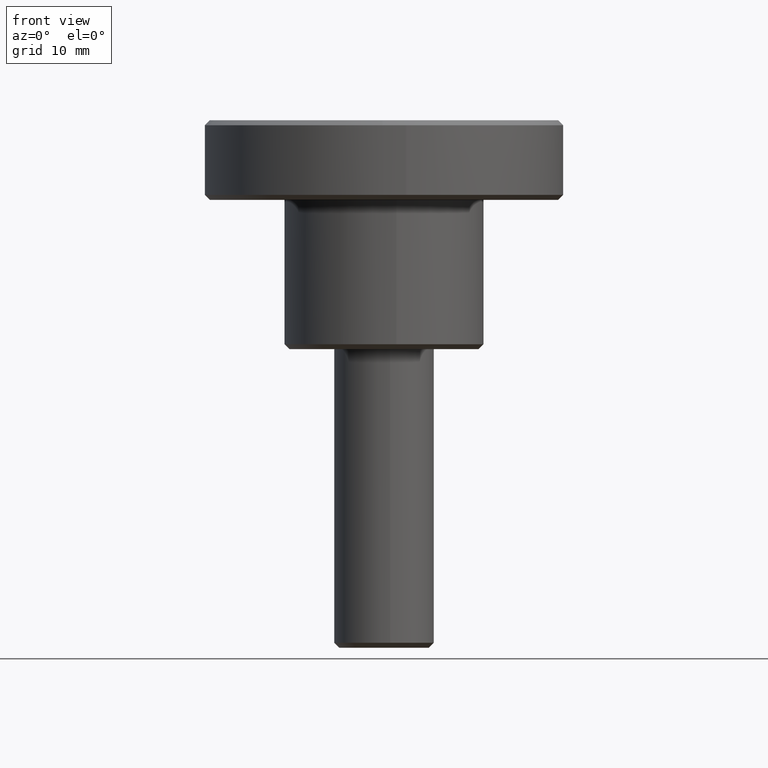
[diagram: clean part render]
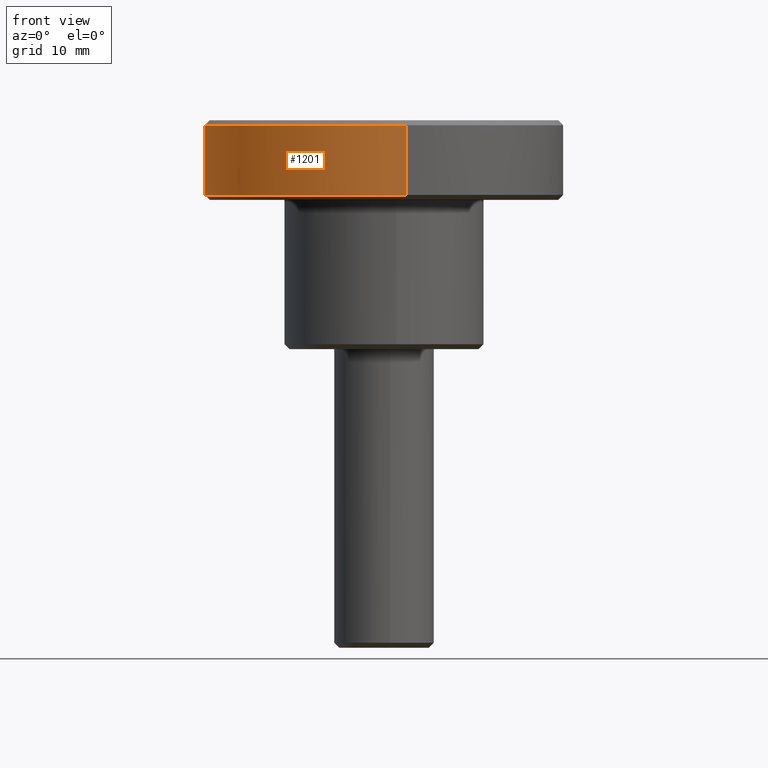
[diagram: same view with one face highlighted and labeled with its STEP entity id]
A machine part, front view. The second image highlights one B-rep face of the part: STEP entity #1201.
In plain terms, the highlighted face is a freeform B-spline surface patch.
Its self-contained STEP definition (entity closure, byte-faithful):
#271=CARTESIAN_POINT('',(-17.535926757209651,-4.060944811981644,22.499999999994941));
#272=VERTEX_POINT('',#271);
#273=CARTESIAN_POINT('',(-18.0,0.0,22.500000000000000));
#274=VERTEX_POINT('',#273);
#275=CARTESIAN_POINT('',(-17.535926757209651,-4.060944811981645,22.499999999994944));
#276=CARTESIAN_POINT('',(-18.0,-2.056988892279863,22.500000000000007));
#277=CARTESIAN_POINT('',(-18.0,0.0,22.500000000000000));
#285=(BOUNDED_CURVE()B_SPLINE_CURVE(2,(#275,#276,#277),.UNSPECIFIED.,.F.,.U.)B_SPLINE_CURVE_WITH_KNOTS((3,3),(0.961422971783811,1.0),.UNSPECIFIED.)CURVE()GEOMETRIC_REPRESENTATION_ITEM()RATIONAL_B_SPLINE_CURVE((0.923556557441492,0.954804200134012,1.0))REPRESENTATION_ITEM(''));
#286=EDGE_CURVE('',#272,#274,#285,.T.);
#344=CARTESIAN_POINT('',(-0.157077639032333,-17.999314615162909,22.499999999991630));
#345=VERTEX_POINT('',#344);
#351=CARTESIAN_POINT('',(2.234292159408510,-17.860793334739139,22.499999999999940));
#352=VERTEX_POINT('',#351);
#353=CARTESIAN_POINT('',(2.234292159408510,-17.860793334739142,22.499999999999936));
#354=CARTESIAN_POINT('',(1.121482687065887,-18.0,22.500000000000000));
#355=CARTESIAN_POINT('',(0.0,-18.0,22.500000000000000));
#356=CARTESIAN_POINT('',(-0.078540314834133,-17.999999999999996,22.499999999999996));
#357=CARTESIAN_POINT('',(-0.157077639032333,-17.999314615162909,22.499999999991626));
#365=(BOUNDED_CURVE()B_SPLINE_CURVE(2,(#353,#354,#355,#356,#357),.UNSPECIFIED.,.F.,.U.)B_SPLINE_CURVE_WITH_KNOTS((3,2,3),(0.728526183184527,0.750000000000000,0.751539894336191),.UNSPECIFIED.)CURVE()GEOMETRIC_REPRESENTATION_ITEM()RATIONAL_B_SPLINE_CURVE((0.954005647924773,0.974841858690822,1.0,0.998195901564962,0.996414028097620))REPRESENTATION_ITEM(''));
#366=EDGE_CURVE('',#352,#345,#365,.T.);
#383=CARTESIAN_POINT('',(-0.157060916530369,17.999314761074071,22.499999999999972));
#384=VERTEX_POINT('',#383);
#400=CARTESIAN_POINT('',(-18.0,0.0,22.500000000000000));
#401=CARTESIAN_POINT('',(-17.999999999999993,17.843618369122190,22.500000000000004));
#402=CARTESIAN_POINT('',(-0.157060916530369,17.999314761074071,22.499999999999968));
#410=(BOUNDED_CURVE()B_SPLINE_CURVE(2,(#400,#401,#402),.UNSPECIFIED.,.F.,.U.)B_SPLINE_CURVE_WITH_KNOTS((3,3),(0.0,0.248460269312225),.UNSPECIFIED.)CURVE()GEOMETRIC_REPRESENTATION_ITEM()RATIONAL_B_SPLINE_CURVE((1.0,0.708910687895541,0.996414406826155))REPRESENTATION_ITEM(''));
#411=EDGE_CURVE('',#274,#384,#410,.T.);
#430=CARTESIAN_POINT('',(-0.157077639032333,-17.999314615162913,22.499999999991630));
#431=CARTESIAN_POINT('',(-14.336755532664897,-17.875570440764317,22.499999999999993));
#432=CARTESIAN_POINT('',(-17.535926757209651,-4.060944811981644,22.499999999994941));
#440=(BOUNDED_CURVE()B_SPLINE_CURVE(2,(#430,#431,#432),.UNSPECIFIED.,.F.,.U.)B_SPLINE_CURVE_WITH_KNOTS((3,3),(0.751539894336191,0.961422971783810),.UNSPECIFIED.)CURVE()GEOMETRIC_REPRESENTATION_ITEM()RATIONAL_B_SPLINE_CURVE((0.996414028097619,0.753549905437709,0.923556557441491))REPRESENTATION_ITEM(''));
#441=EDGE_CURVE('',#345,#272,#440,.T.);
#538=CARTESIAN_POINT('',(0.157077645517671,-17.999314617755640,15.500000002657560));
#539=VERTEX_POINT('',#538);
#545=CARTESIAN_POINT('',(-18.0,0.0,15.500000000000000));
#546=VERTEX_POINT('',#545);
#547=CARTESIAN_POINT('',(-18.0,0.0,15.500000000000000));
#548=CARTESIAN_POINT('',(-18.000000000000007,-18.000000000000007,15.500000000000005));
#549=CARTESIAN_POINT('',(0.0,-18.0,15.500000000000000));
#550=CARTESIAN_POINT('',(0.078540321296755,-18.000000000000004,15.500000000000005));
#551=CARTESIAN_POINT('',(0.157077645517671,-17.999314617755633,15.500000002657558));
#559=(BOUNDED_CURVE()B_SPLINE_CURVE(2,(#547,#548,#549,#550,#551),.UNSPECIFIED.,.F.,.U.)B_SPLINE_CURVE_WITH_KNOTS((3,2,3),(0.0,0.250000000000000,0.251539894462671),.UNSPECIFIED.)CURVE()GEOMETRIC_REPRESENTATION_ITEM()RATIONAL_B_SPLINE_CURVE((1.0,0.707106781186547,1.0,0.998195901416781,0.996414027804909))REPRESENTATION_ITEM(''));
#560=EDGE_CURVE('',#546,#539,#559,.T.);
#562=CARTESIAN_POINT('',(-0.157060678357187,17.999314763152132,15.500000000000000));
#563=VERTEX_POINT('',#562);
#564=CARTESIAN_POINT('',(-0.157060678357187,17.999314763152132,15.499999999999998));
#565=CARTESIAN_POINT('',(-18.0,17.843618605244128,15.499999999999995));
#566=CARTESIAN_POINT('',(-18.0,0.0,15.500000000000000));
#574=(BOUNDED_CURVE()B_SPLINE_CURVE(2,(#564,#565,#566),.UNSPECIFIED.,.F.,.U.)B_SPLINE_CURVE_WITH_KNOTS((3,3),(0.751539728356992,1.0),.UNSPECIFIED.)CURVE()GEOMETRIC_REPRESENTATION_ITEM()RATIONAL_B_SPLINE_CURVE((0.996414412220248,0.708910685164858,1.0))REPRESENTATION_ITEM(''));
#575=EDGE_CURVE('',#563,#546,#574,.T.);
#645=CARTESIAN_POINT('',(2.234295641323562,-17.860792899171379,15.500000000000000));
#646=VERTEX_POINT('',#645);
#660=CARTESIAN_POINT('',(0.157077645517671,-17.999314617755637,15.500000002657561));
#661=CARTESIAN_POINT('',(1.199698622931771,-17.990215798916346,15.499999999999996));
#662=CARTESIAN_POINT('',(2.234295641323561,-17.860792899171386,15.500000000000004));
#670=(BOUNDED_CURVE()B_SPLINE_CURVE(2,(#660,#661,#662),.UNSPECIFIED.,.F.,.U.)B_SPLINE_CURVE_WITH_KNOTS((3,3),(0.251539894462671,0.271473849692561),.UNSPECIFIED.)CURVE()GEOMETRIC_REPRESENTATION_ITEM()RATIONAL_B_SPLINE_CURVE((0.996414027804910,0.973347649124152,0.954005584122997))REPRESENTATION_ITEM(''));
#671=EDGE_CURVE('',#539,#646,#670,.T.);
#1151=CARTESIAN_POINT('',(2.234295641323562,-17.860792899171379,15.500000000000000));
#1152=CARTESIAN_POINT('',(2.234292159408510,-17.860793334739139,22.499999999999940));
#1153=QUASI_UNIFORM_CURVE('',1,(#1151,#1152),.UNSPECIFIED.,.F.,.U.);
#1154=EDGE_CURVE('',#646,#352,#1153,.T.);
#1159=CARTESIAN_POINT('',(-0.157060678357187,17.999314763152132,15.500000000000000));
#1160=CARTESIAN_POINT('',(-0.157060916530369,17.999314761074071,22.499999999999972));
#1161=QUASI_UNIFORM_CURVE('',1,(#1159,#1160),.UNSPECIFIED.,.F.,.U.);
#1162=EDGE_CURVE('',#563,#384,#1161,.T.);
#1168=CARTESIAN_POINT('',(-0.157077638970730,17.999314615155079,15.324999999999999));
#1169=CARTESIAN_POINT('',(-18.156392254125802,17.842236976184342,15.324999999999998));
#1170=CARTESIAN_POINT('',(-17.999314615155079,-0.157077638970730,15.324999999999999));
#1171=CARTESIAN_POINT('',(-17.842236976184342,-18.156392254125802,15.324999999999998));
#1172=CARTESIAN_POINT('',(0.157077638970730,-17.999314615155079,15.324999999999999));
#1173=CARTESIAN_POINT('',(1.199702861247124,-17.990215762684961,15.325000000000003));
#1174=CARTESIAN_POINT('',(2.234304037436927,-17.860791848859694,15.324999999999998));
#1175=CARTESIAN_POINT('',(-0.157077638970730,17.999314615155079,22.679375000000000));
#1176=CARTESIAN_POINT('',(-18.156392254125802,17.842236976184342,22.679375000000000));
#1177=CARTESIAN_POINT('',(-17.999314615155079,-0.157077638970730,22.679375000000000));
#1178=CARTESIAN_POINT('',(-17.842236976184342,-18.156392254125802,22.679375000000000));
#1179=CARTESIAN_POINT('',(0.157077638970730,-17.999314615155079,22.679375000000000));
#1180=CARTESIAN_POINT('',(1.199702861247124,-17.990215762684961,22.679375000000004));
#1181=CARTESIAN_POINT('',(2.234304037436927,-17.860791848859694,22.679375000000004));
#1189=(BOUNDED_SURFACE()B_SPLINE_SURFACE(2,1,((#1168,#1175),(#1169,#1176),(#1170,#1177),(#1171,#1178),(#1172,#1179),(#1173,#1180),(#1174,#1181)),.UNSPECIFIED.,.F.,.F.,.U.)B_SPLINE_SURFACE_WITH_KNOTS((3,2,2,3),(2,2),(0.0,29.823376490862831,59.646752981725669,62.032623100994698),(0.0,7.354375000000009),.UNSPECIFIED.)GEOMETRIC_REPRESENTATION_ITEM()RATIONAL_B_SPLINE_SURFACE(((1.0,1.0),(0.707106781186548,0.707106781186548),(1.0,1.0),(0.707106781186548,0.707106781186548),(1.0,1.0),(0.976568542494924,0.976568542494924),(0.956886118190660,0.956886118190660)))REPRESENTATION_ITEM('')SURFACE());
#1190=ORIENTED_EDGE('',*,*,#366,.T.);
#1191=ORIENTED_EDGE('',*,*,#441,.T.);
#1192=ORIENTED_EDGE('',*,*,#286,.T.);
#1193=ORIENTED_EDGE('',*,*,#411,.T.);
#1194=ORIENTED_EDGE('',*,*,#1162,.F.);
#1195=ORIENTED_EDGE('',*,*,#575,.T.);
#1196=ORIENTED_EDGE('',*,*,#560,.T.);
#1197=ORIENTED_EDGE('',*,*,#671,.T.);
#1198=ORIENTED_EDGE('',*,*,#1154,.T.);
#1199=EDGE_LOOP('',(#1190,#1191,#1192,#1193,#1194,#1195,#1196,#1197,#1198));
#1200=FACE_OUTER_BOUND('',#1199,.T.);
#1201=ADVANCED_FACE('',(#1200),#1189,.T.);